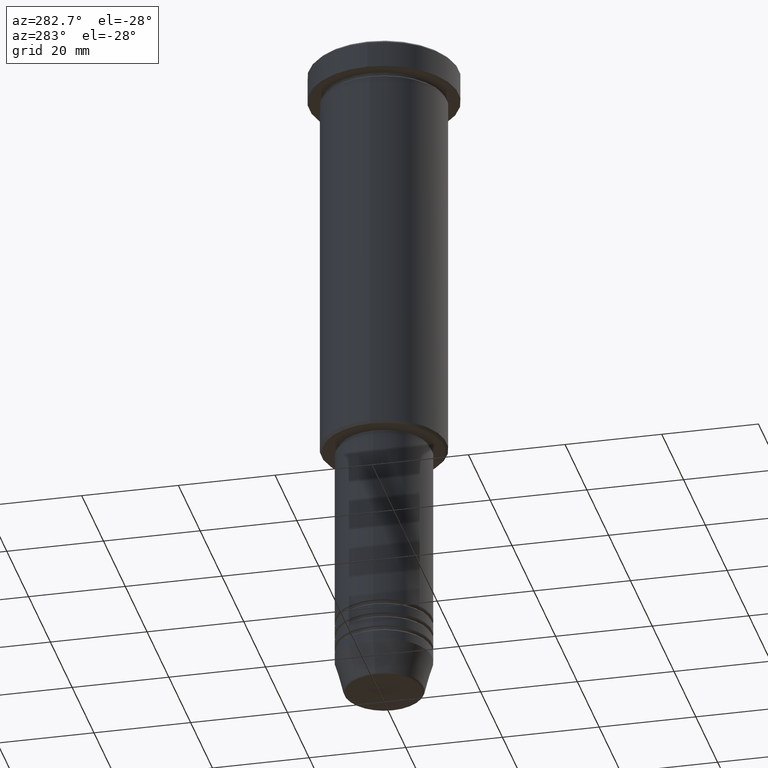
[diagram: clean part render]
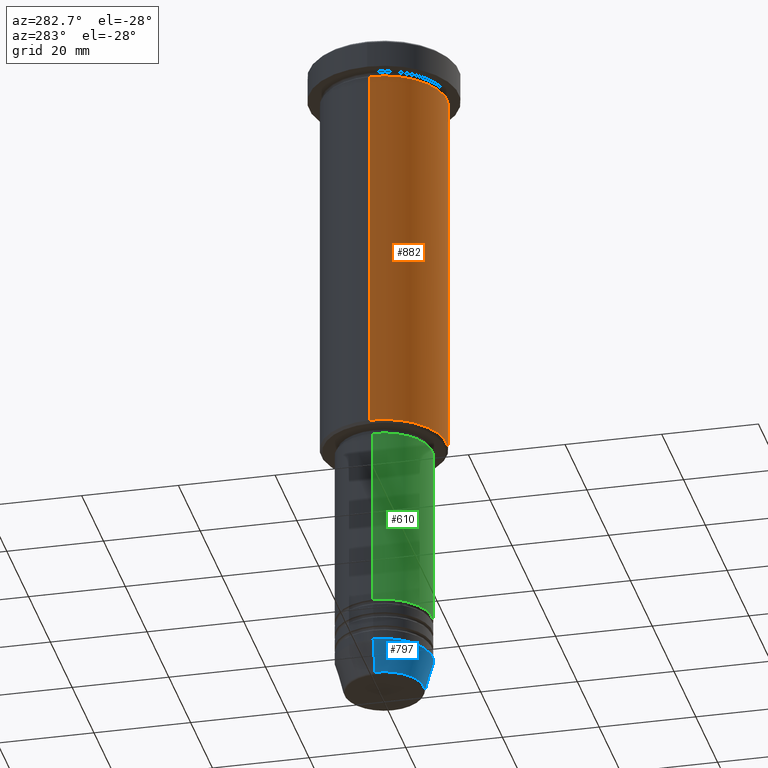
[diagram: same view with three faces highlighted in distinct colors, each labeled with its STEP entity id]
A machine part, auxiliary view with three faces highlighted in distinct colors.
Their STEP definitions:

[orange] entity #882 — the highlighted cylindrical surface (partial cylindrical patch) has radius 13 mm, axis along (-0, -0, 1).
#36 = VERTEX_POINT ( 'NONE', #534 ) ;
#78 = DIRECTION ( 'NONE',  ( -0.000000000000000000, -0.000000000000000000, 1.000000000000000000 ) ) ;
#99 = DIRECTION ( 'NONE',  ( -1.000000000000000000, 0.000000000000000000, 0.000000000000000000 ) ) ;
#122 = CARTESIAN_POINT ( 'NONE',  ( 0.000000000000000000, 0.000000000000000000, -6.999999999999995559 ) ) ;
#125 = CIRCLE ( 'NONE', #871, 13.00000000000000000 ) ;
#178 = DIRECTION ( 'NONE',  ( -0.000000000000000000, -0.000000000000000000, 1.000000000000000000 ) ) ;
#217 = EDGE_CURVE ( 'NONE', #878, #299, #998, .T. ) ;
#225 = DIRECTION ( 'NONE',  ( 1.000000000000000000, 0.000000000000000000, 0.000000000000000000 ) ) ;
#251 = DIRECTION ( 'NONE',  ( -0.000000000000000000, -0.000000000000000000, 1.000000000000000000 ) ) ;
#252 = DIRECTION ( 'NONE',  ( 1.000000000000000000, 0.000000000000000000, 0.000000000000000000 ) ) ;
#299 = VERTEX_POINT ( 'NONE', #703 ) ;
#353 = CYLINDRICAL_SURFACE ( 'NONE', #1001, 13.00000000000000000 ) ;
#424 = VECTOR ( 'NONE', #925, 1000.000000000000000 ) ;
#477 = ORIENTED_EDGE ( 'NONE', *, *, #714, .T. ) ;
#482 = DIRECTION ( 'NONE',  ( -0.000000000000000000, -0.000000000000000000, 1.000000000000000000 ) ) ;
#508 = EDGE_LOOP ( 'NONE', ( #626, #596, #477, #913 ) ) ;
#534 = CARTESIAN_POINT ( 'NONE',  ( 13.00000000000000000, 0.000000000000000000, -85.49999999999997158 ) ) ;
#539 = CARTESIAN_POINT ( 'NONE',  ( -13.00000000000000000, 1.592040838891559095E-15, -85.49999999999997158 ) ) ;
#550 = CARTESIAN_POINT ( 'NONE',  ( 13.00000000000000000, 0.000000000000000000, 0.000000000000000000 ) ) ;
#596 = ORIENTED_EDGE ( 'NONE', *, *, #814, .T. ) ;
#606 = CARTESIAN_POINT ( 'NONE',  ( 0.000000000000000000, 0.000000000000000000, -85.49999999999997158 ) ) ;
#626 = ORIENTED_EDGE ( 'NONE', *, *, #807, .F. ) ;
#648 = LINE ( 'NONE', #550, #424 ) ;
#703 = CARTESIAN_POINT ( 'NONE',  ( 13.00000000000000000, 0.000000000000000000, -6.999999999999995559 ) ) ;
#709 = LINE ( 'NONE', #1064, #1135 ) ;
#714 = EDGE_CURVE ( 'NONE', #36, #299, #648, .T. ) ;
#807 = EDGE_CURVE ( 'NONE', #1028, #878, #709, .T. ) ;
#814 = EDGE_CURVE ( 'NONE', #1028, #36, #125, .T. ) ;
#832 = CARTESIAN_POINT ( 'NONE',  ( -13.00000000000000000, 1.592040838891559095E-15, -6.999999999999995559 ) ) ;
#871 = AXIS2_PLACEMENT_3D ( 'NONE', #606, #178, #99 ) ;
#878 = VERTEX_POINT ( 'NONE', #832 ) ;
#882 = ADVANCED_FACE ( 'NONE', ( #1164 ), #353, .T. ) ;
#901 = CARTESIAN_POINT ( 'NONE',  ( 0.000000000000000000, 0.000000000000000000, 0.000000000000000000 ) ) ;
#913 = ORIENTED_EDGE ( 'NONE', *, *, #217, .F. ) ;
#925 = DIRECTION ( 'NONE',  ( -0.000000000000000000, -0.000000000000000000, 1.000000000000000000 ) ) ;
#998 = CIRCLE ( 'NONE', #1016, 13.00000000000000000 ) ;
#1001 = AXIS2_PLACEMENT_3D ( 'NONE', #901, #78, #252 ) ;
#1016 = AXIS2_PLACEMENT_3D ( 'NONE', #122, #482, #225 ) ;
#1028 = VERTEX_POINT ( 'NONE', #539 ) ;
#1064 = CARTESIAN_POINT ( 'NONE',  ( -13.00000000000000000, 1.592040838891559095E-15, 0.000000000000000000 ) ) ;
#1135 = VECTOR ( 'NONE', #251, 1000.000000000000000 ) ;
#1164 = FACE_OUTER_BOUND ( 'NONE', #508, .T. ) ;

[blue] entity #797 — the highlighted conical surface has half-angle 15 deg.
#34 = EDGE_CURVE ( 'NONE', #939, #177, #1068, .T. ) ;
#102 = LINE ( 'NONE', #1100, #1094 ) ;
#120 = CIRCLE ( 'NONE', #516, 8.223655072137191269 ) ;
#138 = EDGE_CURVE ( 'NONE', #944, #1180, #120, .T. ) ;
#167 = DIRECTION ( 'NONE',  ( -0.000000000000000000, -0.000000000000000000, 1.000000000000000000 ) ) ;
#177 = VERTEX_POINT ( 'NONE', #489 ) ;
#188 = ORIENTED_EDGE ( 'NONE', *, *, #138, .T. ) ;
#215 = DIRECTION ( 'NONE',  ( 0.2588190451025213501, 0.000000000000000000, 0.9659258262890680902 ) ) ;
#216 = CARTESIAN_POINT ( 'NONE',  ( 8.223655072137191269, 0.000000000000000000, -140.6294095225512706 ) ) ;
#283 = DIRECTION ( 'NONE',  ( -0.000000000000000000, -0.000000000000000000, 1.000000000000000000 ) ) ;
#306 = LINE ( 'NONE', #1044, #858 ) ;
#320 = ORIENTED_EDGE ( 'NONE', *, *, #34, .F. ) ;
#350 = DIRECTION ( 'NONE',  ( 1.000000000000000000, 0.000000000000000000, 0.000000000000000000 ) ) ;
#402 = EDGE_CURVE ( 'NONE', #1180, #177, #306, .T. ) ;
#416 = ORIENTED_EDGE ( 'NONE', *, *, #402, .T. ) ;
#433 = CARTESIAN_POINT ( 'NONE',  ( -8.223655072137191269, 1.115877042642912054E-15, -140.6294095225512706 ) ) ;
#476 = DIRECTION ( 'NONE',  ( 1.000000000000000000, 0.000000000000000000, 0.000000000000000000 ) ) ;
#489 = CARTESIAN_POINT ( 'NONE',  ( 10.00000000000000000, 0.000000000000000000, -134.0000000000000000 ) ) ;
#516 = AXIS2_PLACEMENT_3D ( 'NONE', #954, #938, #476 ) ;
#522 = CONICAL_SURFACE ( 'NONE', #1073, 10.00000000000000000, 0.2617993877991500740 ) ;
#651 = DIRECTION ( 'NONE',  ( 1.000000000000000000, 0.000000000000000000, 0.000000000000000000 ) ) ;
#797 = ADVANCED_FACE ( 'NONE', ( #904 ), #522, .T. ) ;
#805 = ORIENTED_EDGE ( 'NONE', *, *, #1041, .F. ) ;
#856 = AXIS2_PLACEMENT_3D ( 'NONE', #927, #283, #651 ) ;
#858 = VECTOR ( 'NONE', #215, 1000.000000000000000 ) ;
#904 = FACE_OUTER_BOUND ( 'NONE', #987, .T. ) ;
#927 = CARTESIAN_POINT ( 'NONE',  ( 0.000000000000000000, 0.000000000000000000, -134.0000000000000000 ) ) ;
#938 = DIRECTION ( 'NONE',  ( -0.000000000000000000, -0.000000000000000000, 1.000000000000000000 ) ) ;
#939 = VERTEX_POINT ( 'NONE', #992 ) ;
#944 = VERTEX_POINT ( 'NONE', #433 ) ;
#954 = CARTESIAN_POINT ( 'NONE',  ( 0.000000000000000000, 0.000000000000000000, -140.6294095225512706 ) ) ;
#987 = EDGE_LOOP ( 'NONE', ( #805, #188, #416, #320 ) ) ;
#992 = CARTESIAN_POINT ( 'NONE',  ( -10.00000000000000000, 1.224646799147353256E-15, -134.0000000000000000 ) ) ;
#1041 = EDGE_CURVE ( 'NONE', #944, #939, #102, .T. ) ;
#1044 = CARTESIAN_POINT ( 'NONE',  ( 10.00000000000000000, 0.000000000000000000, -134.0000000000000000 ) ) ;
#1068 = CIRCLE ( 'NONE', #856, 10.00000000000000000 ) ;
#1073 = AXIS2_PLACEMENT_3D ( 'NONE', #1087, #167, #350 ) ;
#1083 = DIRECTION ( 'NONE',  ( -0.2588190451025213501, 3.169619151431772337E-17, 0.9659258262890680902 ) ) ;
#1087 = CARTESIAN_POINT ( 'NONE',  ( 0.000000000000000000, 0.000000000000000000, -134.0000000000000000 ) ) ;
#1094 = VECTOR ( 'NONE', #1083, 1000.000000000000000 ) ;
#1100 = CARTESIAN_POINT ( 'NONE',  ( -10.00000000000000000, 1.224646799147353256E-15, -134.0000000000000000 ) ) ;
#1180 = VERTEX_POINT ( 'NONE', #216 ) ;

[green] entity #610 — the highlighted cylindrical surface (partial cylindrical patch) has radius 10 mm, axis along (-0, -0, 1).
#65 = CARTESIAN_POINT ( 'NONE',  ( 10.00000000000000000, 0.000000000000000000, -124.9999999999999716 ) ) ;
#72 = CARTESIAN_POINT ( 'NONE',  ( -10.00000000000000000, 1.224646799147353256E-15, 0.000000000000000000 ) ) ;
#73 = CARTESIAN_POINT ( 'NONE',  ( 0.000000000000000000, 0.000000000000000000, 0.000000000000000000 ) ) ;
#101 = DIRECTION ( 'NONE',  ( 1.000000000000000000, 0.000000000000000000, 0.000000000000000000 ) ) ;
#105 = VECTOR ( 'NONE', #988, 1000.000000000000000 ) ;
#115 = CARTESIAN_POINT ( 'NONE',  ( 0.000000000000000000, 0.000000000000000000, -124.9999999999999716 ) ) ;
#117 = CARTESIAN_POINT ( 'NONE',  ( 10.00000000000000000, 0.000000000000000000, 0.000000000000000000 ) ) ;
#131 = EDGE_CURVE ( 'NONE', #613, #958, #660, .T. ) ;
#133 = ORIENTED_EDGE ( 'NONE', *, *, #434, .F. ) ;
#137 = LINE ( 'NONE', #117, #349 ) ;
#182 = AXIS2_PLACEMENT_3D ( 'NONE', #115, #1023, #564 ) ;
#260 = CARTESIAN_POINT ( 'NONE',  ( 0.000000000000000000, 0.000000000000000000, -87.00000000000000000 ) ) ;
#312 = DIRECTION ( 'NONE',  ( -0.000000000000000000, -0.000000000000000000, 1.000000000000000000 ) ) ;
#315 = CARTESIAN_POINT ( 'NONE',  ( -10.00000000000000000, 1.224646799147353256E-15, -124.9999999999999716 ) ) ;
#337 = CYLINDRICAL_SURFACE ( 'NONE', #891, 10.00000000000000000 ) ;
#346 = DIRECTION ( 'NONE',  ( -0.000000000000000000, -0.000000000000000000, 1.000000000000000000 ) ) ;
#349 = VECTOR ( 'NONE', #312, 1000.000000000000000 ) ;
#355 = CARTESIAN_POINT ( 'NONE',  ( -10.00000000000000000, 1.224646799147353256E-15, -87.00000000000000000 ) ) ;
#380 = EDGE_CURVE ( 'NONE', #958, #1063, #137, .T. ) ;
#421 = FACE_OUTER_BOUND ( 'NONE', #864, .T. ) ;
#434 = EDGE_CURVE ( 'NONE', #604, #1063, #1170, .T. ) ;
#435 = ORIENTED_EDGE ( 'NONE', *, *, #131, .T. ) ;
#564 = DIRECTION ( 'NONE',  ( 1.000000000000000000, 0.000000000000000000, 0.000000000000000000 ) ) ;
#604 = VERTEX_POINT ( 'NONE', #355 ) ;
#610 = ADVANCED_FACE ( 'NONE', ( #421 ), #337, .T. ) ;
#613 = VERTEX_POINT ( 'NONE', #315 ) ;
#619 = LINE ( 'NONE', #72, #105 ) ;
#628 = CARTESIAN_POINT ( 'NONE',  ( 10.00000000000000000, 0.000000000000000000, -87.00000000000000000 ) ) ;
#660 = CIRCLE ( 'NONE', #182, 10.00000000000000000 ) ;
#686 = ORIENTED_EDGE ( 'NONE', *, *, #971, .F. ) ;
#729 = DIRECTION ( 'NONE',  ( -0.000000000000000000, -0.000000000000000000, 1.000000000000000000 ) ) ;
#864 = EDGE_LOOP ( 'NONE', ( #686, #435, #989, #133 ) ) ;
#891 = AXIS2_PLACEMENT_3D ( 'NONE', #73, #729, #985 ) ;
#958 = VERTEX_POINT ( 'NONE', #65 ) ;
#971 = EDGE_CURVE ( 'NONE', #613, #604, #619, .T. ) ;
#985 = DIRECTION ( 'NONE',  ( 1.000000000000000000, 0.000000000000000000, 0.000000000000000000 ) ) ;
#988 = DIRECTION ( 'NONE',  ( -0.000000000000000000, -0.000000000000000000, 1.000000000000000000 ) ) ;
#989 = ORIENTED_EDGE ( 'NONE', *, *, #380, .T. ) ;
#1023 = DIRECTION ( 'NONE',  ( -0.000000000000000000, -0.000000000000000000, 1.000000000000000000 ) ) ;
#1063 = VERTEX_POINT ( 'NONE', #628 ) ;
#1151 = AXIS2_PLACEMENT_3D ( 'NONE', #260, #346, #101 ) ;
#1170 = CIRCLE ( 'NONE', #1151, 10.00000000000000000 ) ;